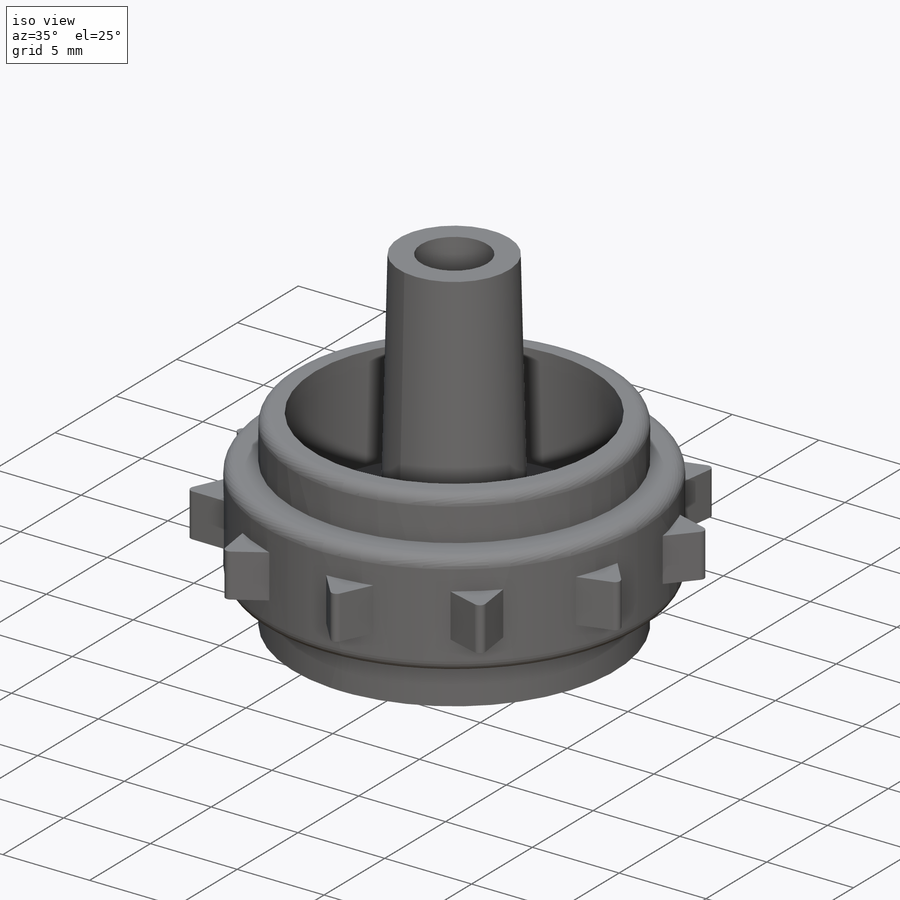
[diagram: iso view]
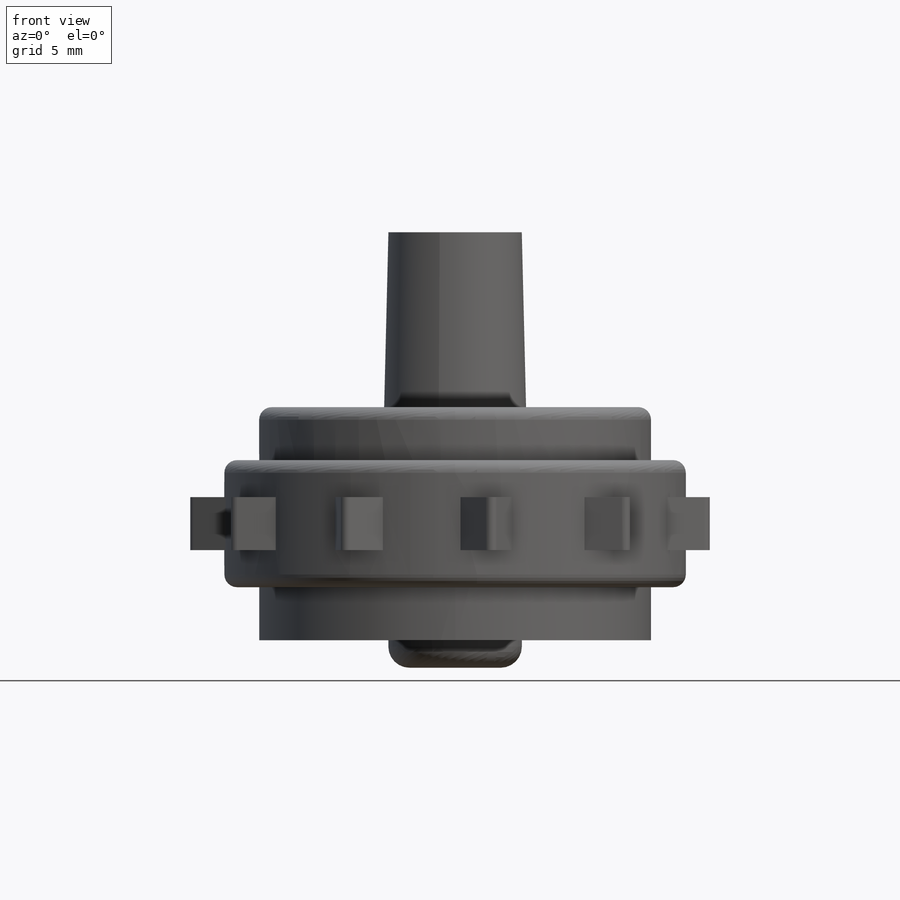
[diagram: front view]
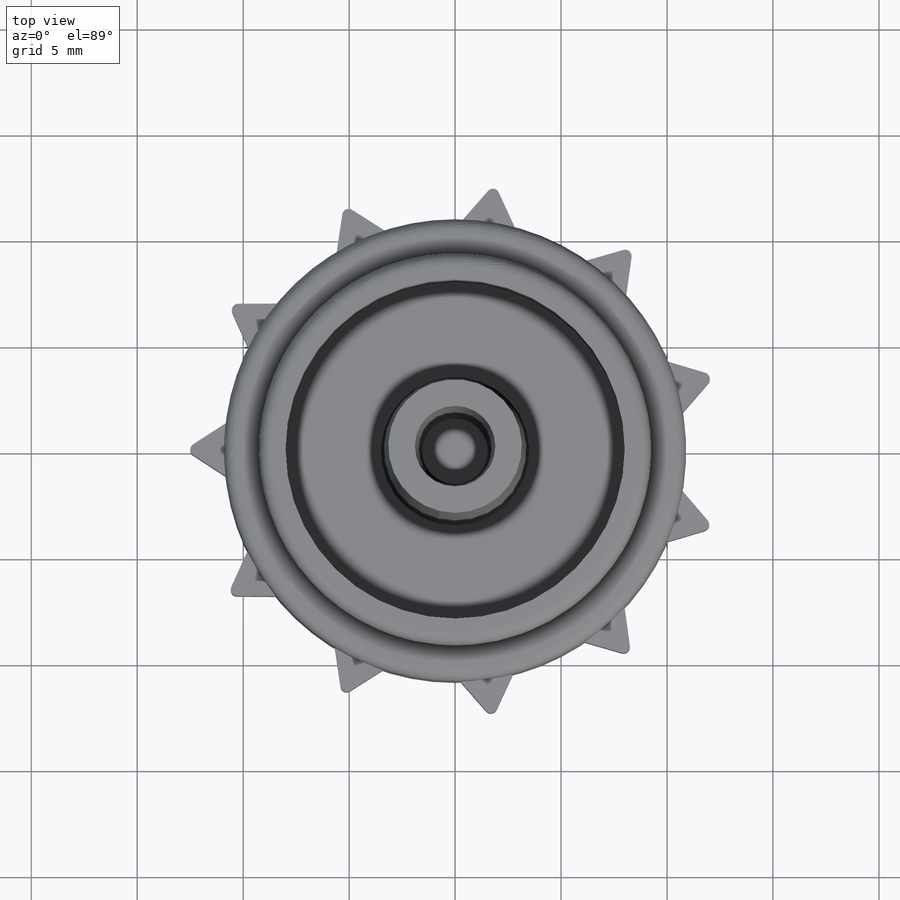
[diagram: top view]
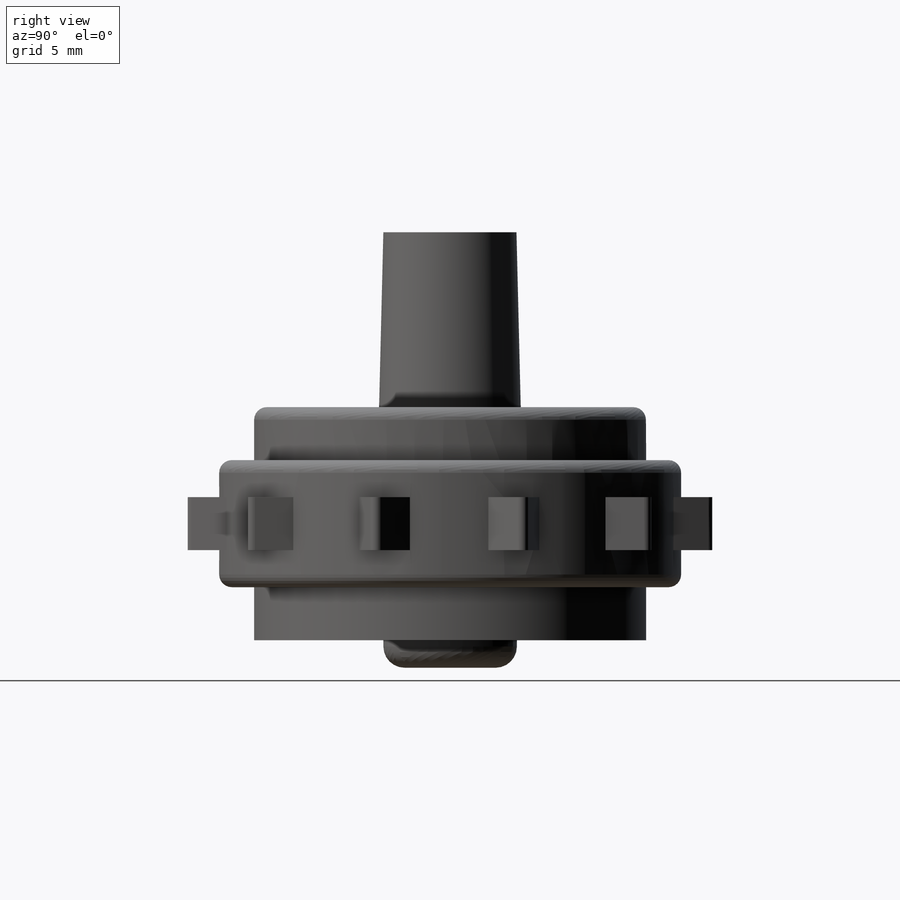
[diagram: right view]
SOLIDWORKS PART (.sldprt)
format: sldprt  version: not decoded by parser v0  size: 344,064 bytes
history: native  units: mm
features: sketch x9, extrude x6, cut_extrude x2, fillet x2, material x1 (+11 scaffold rows collapsed)
feature tree (31):
  scaffold x11  (default folders/planes/origin — collapsed)
  material  "Material <not specified>"
  sketch  "Sketch1"  dims[D1=18.5mm]
  extrude  "Boss-Extrude1"  Depth=2.5mm
  sketch  "Sketch2"  dims[D1=21.8mm]
  extrude  "Boss-Extrude2"  Depth=6mm
  sketch  "Sketch3"  dims[D1=18.5mm]
  extrude  "Boss-Extrude3"  Depth=2.5mm
  sketch  "Sketch4"  dims[D1=16.0mm]
  sketch  "Sketch5"  dims[D1=16.0mm]
  cut_extrude  "Cut-Extrude1"  Depth=3.5mm
  cut_extrude  "Cut-Extrude2"  Depth=6mm
  sketch  "Sketch6"  dims[D1=6.3mm]
  extrude  "Boss-Extrude4"  Depth=4.8mm
  sketch  "Sketch7"  dims[D1=7.0mm D2=3.1mm]
  extrude  "Boss-Extrude5"  Depth=14.25mm
  fillet  "Fillet1"  Radius=0.6mm
  sketch  "3DSketch1"  dims[c1.D1=15.0mm c1.D2=~3.712307mm c1.D3=3.0mm c2.D3=~3.03605mm c2.D7=2.2mm c2.D4=~2.136262mm c3.D3=1.5mm c3.D5=~13.143587mm c4.D3=13.0mm c4.D6=~0.275679mm c5.D3=0.0mm c5.D7=0.0mm c6.D7=2.2mm c7.D7=~55.713124deg c7.D8=~55.713124deg c8.D7=2.2mm c9.D7=~68.573754deg c9.D8=~68.573754deg c10.D7=2.2mm c10.D8=2.2mm c11.D7=~2.662705mm c11.D8=~2.662705mm c12.D7=1.5mm c12.D8=1.5mm c13.D7=~2.662705mm c13.D8=~2.662705mm c14.D7=10.8mm c14.D8=10.8mm c15.D7=13.0mm c15.D2=3.15mm c15.D3=3.15mm]
  sketch  "Sketch8"  dims[D1=2.5mm D2=~10.822261mm D3=12.75mm D4=1.25mm D5=11.0]
  extrude  "Boss-Extrude6"  Depth=2.5mm
  fillet  "Fillet2"  Radius=0.3mm
decode coverage: 19 of 19 modeling features carry decoded parameters
note: ~ marks probable driven/reference dimensions
note: suppression state not decoded; provenance and decode notes live in map.json
